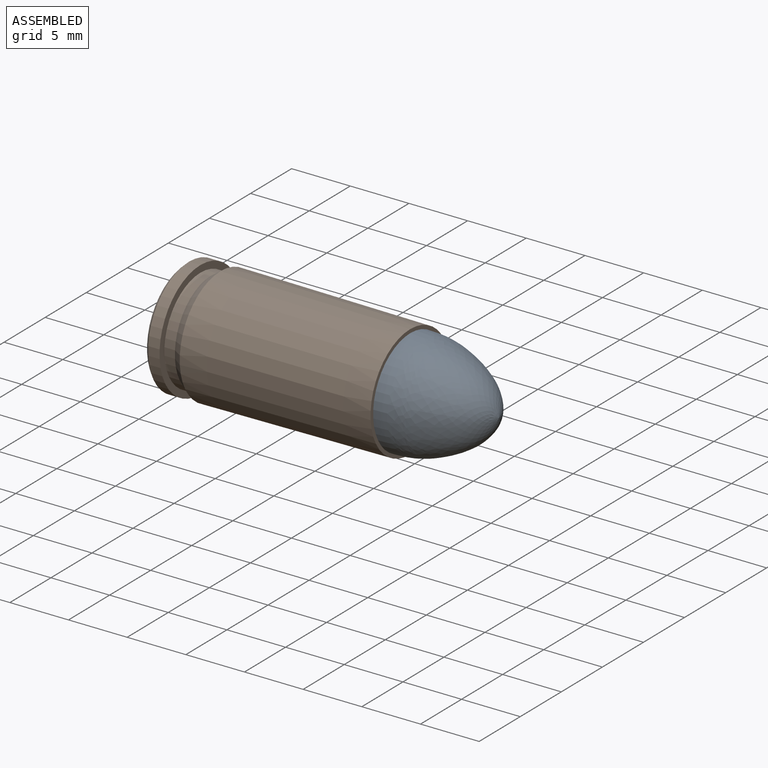
[diagram: assembled view]
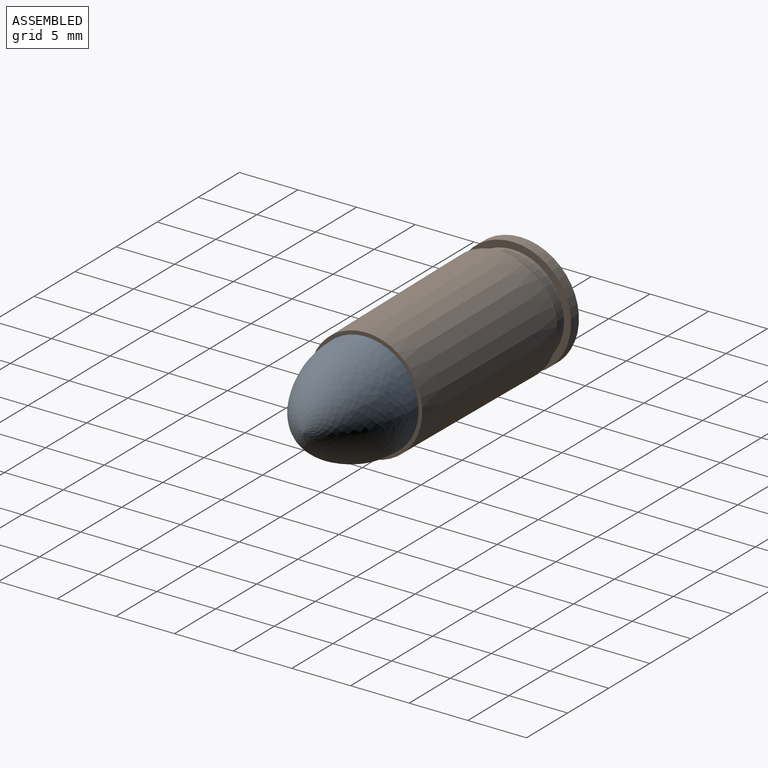
[diagram: assembled view, second angle]
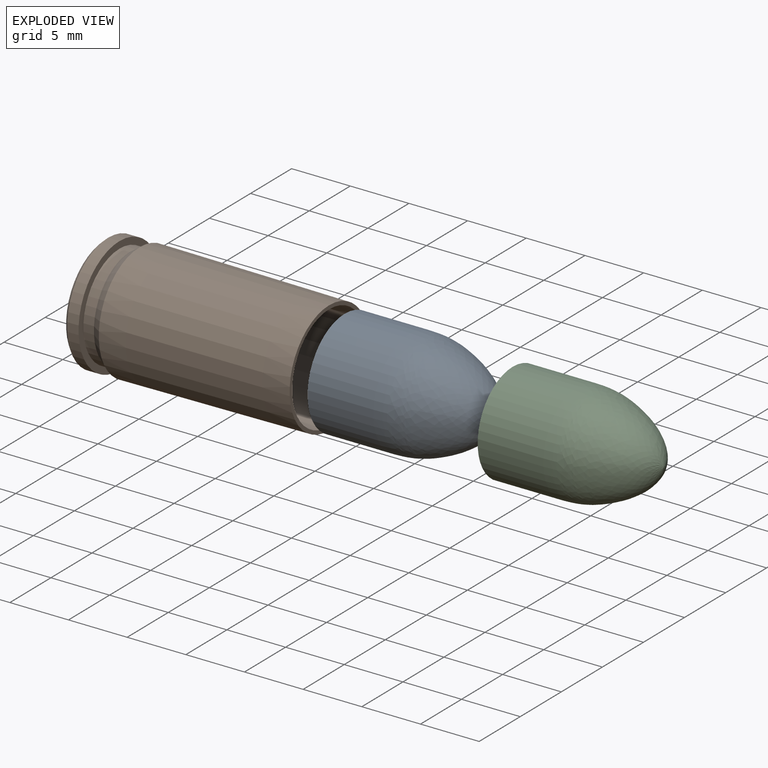
[diagram: exploded view]
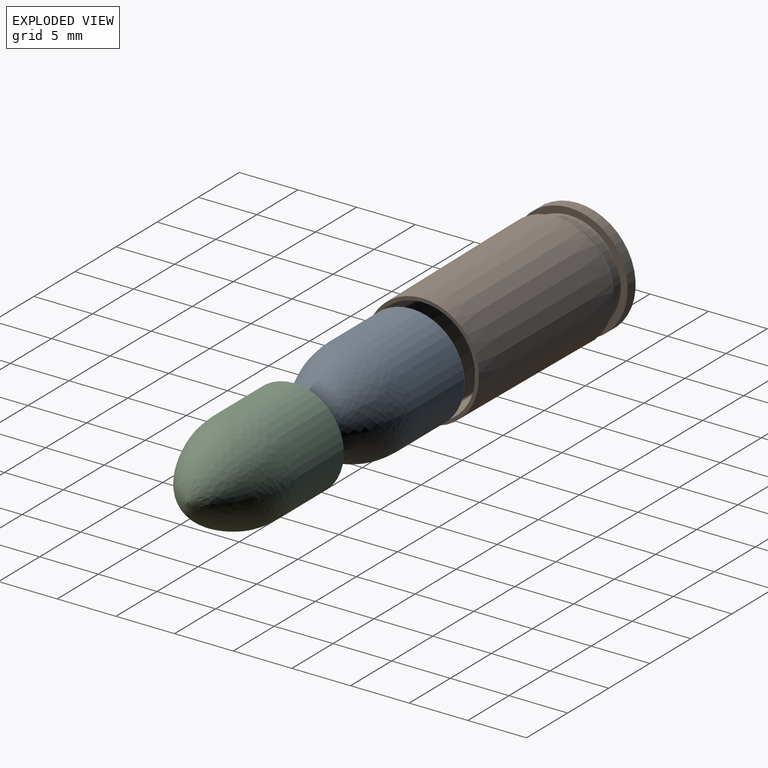
[diagram: exploded view, second angle]
ASSEMBLY  parts=3 mates=2
PART A: 5 faces, bbox 13.2x9x9 mm
  f0: cylinder r=4.26mm len=8.52mm, axis (-1,0,0), area 149.4mm2, adj f1,f4
  f1: revolved ~8.52x8.52mm, area 162.9mm2, adj f0
  f2: revolved ~9.03x9.03mm, area 179.9mm2, adj f3
  f3: cylinder r=4.51mm len=9.03mm, axis (-1,0,0), area 158.5mm2, adj f2,f4
  f4: plane 9.03x9.03mm, normal (-1,0,0), area 7mm2, adj f0,f3
PART B: 13 faces, bbox 19.2x10x10 mm
  f0: cylinder r=0.5mm len=1mm, axis (-1,0,0), area 2.6mm2, adj f1,f12
  f1: cone r=4.39mm half-angle=88.5deg, axis (1,0,0), area 59.9mm2, adj f0,f2
  f2: cone r=4.51mm half-angle=0.5deg, axis (1,0,0), area 426.6mm2, adj f1,f3
  f3: plane 9.65x9.65mm, normal (1,0,0), area 9.1mm2, adj f2,f4
  f4: cone r=4.96mm half-angle=0.5deg, axis (-1,0,0), area 497.3mm2, adj f3,f5
  f5: cone r=4.39mm half-angle=35.1deg, axis (1,0,0), area 29.1mm2, adj f4,f6
  f6: cylinder r=4.39mm len=8.79mm, axis (-1,0,0), area 24.9mm2, adj f5,f7
  f7: plane 9.96x9.96mm, normal (1,0,0), area 17.2mm2, adj f6,f8
  f8: cylinder r=4.98mm len=9.96mm, axis (-1,0,0), area 30.4mm2, adj f7,f9
  f9: cone r=4.68mm half-angle=45deg, axis (1,0,0), area 12.9mm2, adj f8,f10
  f10: plane 9.36x9.36mm, normal (-1,0,0), area 53.6mm2, adj f9,f11
  f11: cylinder r=2.2mm len=4.39mm, axis (-1,0,0), area 41mm2, adj f10,f12
  f12: plane 4.39x4.39mm, normal (-1,0,0), area 14.4mm2, adj f0,f11
PART C: 3 faces, bbox 12.9x8.5x8.5 mm
  f0: revolved ~8.52x8.52mm, area 162.9mm2, adj f1
  f1: cylinder r=4.26mm len=8.52mm, axis (-1,0,0), area 149.4mm2, adj f0,f2
  f2: plane 8.52x8.52mm, normal (-1,0,0), area 57mm2, adj f1
PLACE A t=(4.02,0.01,-0.01)mm
PLACE B t=(-9.54,0.01,-0.01)mm fixed
PLACE C t=(4.14,0.01,-0.01)mm
MATE fastened B.f0 <-> A.f0  axis (1,0,0) through (9.61,0.01,-0.01)mm
MATE fastened C.f1 <-> A.f0  axis (-1,0,0) through (13.47,0.01,-0.01)mm
